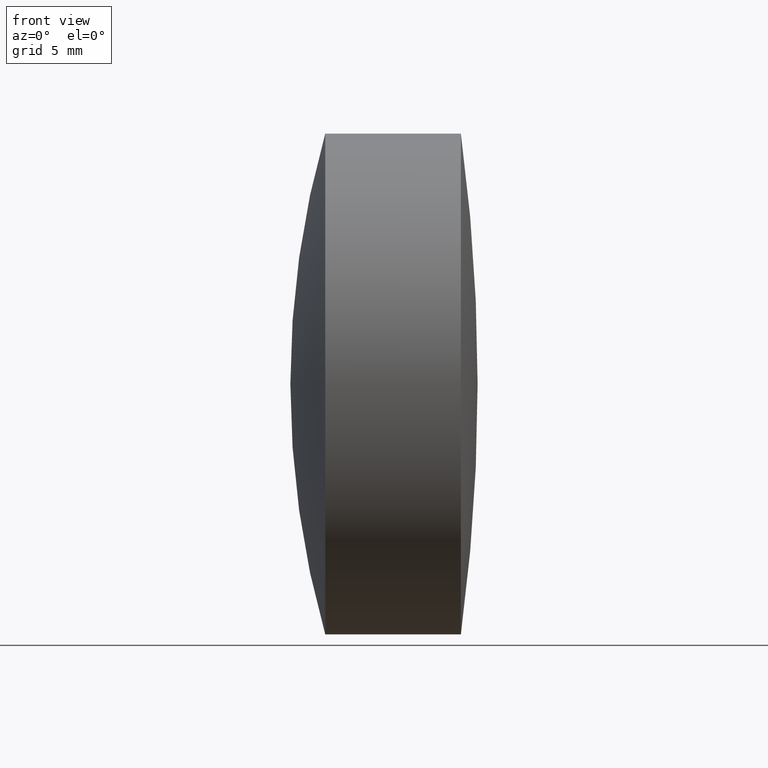
[diagram: clean part render]
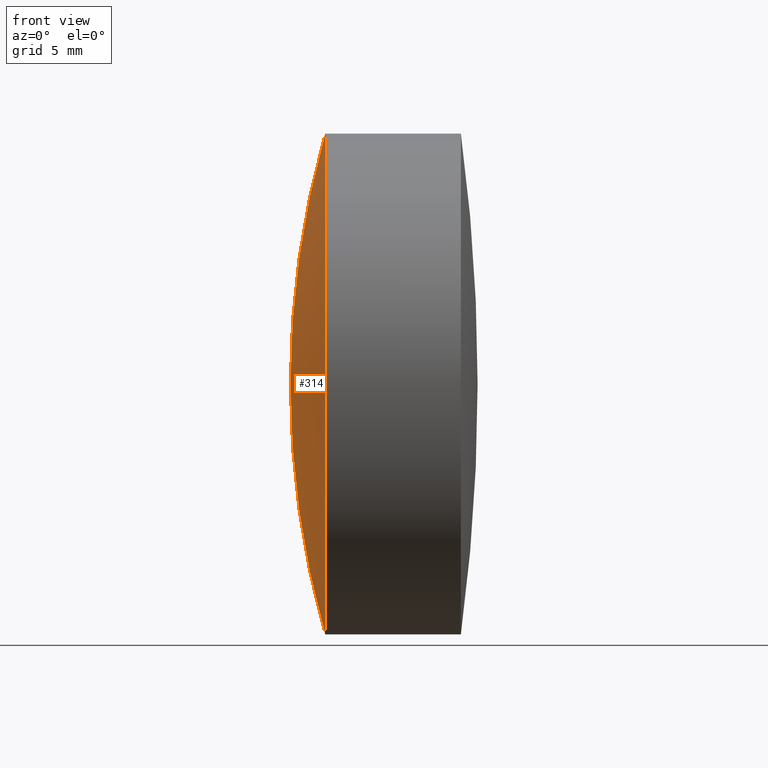
[diagram: same view with one face highlighted and labeled with its STEP entity id]
A machine part, front view. The second image highlights one B-rep face of the part: STEP entity #314.
In plain terms, the highlighted spherical surface has radius 46.5 mm.
Its self-contained STEP definition (entity closure, byte-faithful):
#4 = DIRECTION ( 'NONE',  ( 0.0000000000000000000, 0.0000000000000000000, 1.000000000000000000 ) ) ;
#38 = EDGE_CURVE ( 'NONE', #307, #224, #72, .T. ) ;
#64 = CIRCLE ( 'NONE', #188, 46.50000000000003600 ) ;
#67 = EDGE_CURVE ( 'NONE', #224, #237, #64, .T. ) ;
#72 = CIRCLE ( 'NONE', #229, 12.69999999999999600 ) ;
#79 = EDGE_LOOP ( 'NONE', ( #219, #195, #295 ) ) ;
#88 = DIRECTION ( 'NONE',  ( 0.0000000000000000000, -1.224646799147353200E-016, 1.000000000000000000 ) ) ;
#93 = FACE_OUTER_BOUND ( 'NONE', #79, .T. ) ;
#101 = EDGE_CURVE ( 'NONE', #307, #237, #203, .T. ) ;
#120 = DIRECTION ( 'NONE',  ( -1.000000000000000000, -0.0000000000000000000, -0.0000000000000000000 ) ) ;
#122 = CARTESIAN_POINT ( 'NONE',  ( 239.7637544197977200, 0.0000000000000000000, 12.69999999999999900 ) ) ;
#153 = CARTESIAN_POINT ( 'NONE',  ( 237.9958458084193800, 0.0000000000000000000, -6.563293434434670700E-016 ) ) ;
#154 = AXIS2_PLACEMENT_3D ( 'NONE', #242, #272, #88 ) ;
#159 = CARTESIAN_POINT ( 'NONE',  ( 239.7637544197977200, 1.555301434917138400E-015, -12.70000000000000300 ) ) ;
#185 = CARTESIAN_POINT ( 'NONE',  ( 239.7637544197977200, 0.0000000000000000000, 0.0000000000000000000 ) ) ;
#188 = AXIS2_PLACEMENT_3D ( 'NONE', #216, #225, #343 ) ;
#195 = ORIENTED_EDGE ( 'NONE', *, *, #38, .T. ) ;
#203 = CIRCLE ( 'NONE', #154, 46.50000000000003600 ) ;
#216 = CARTESIAN_POINT ( 'NONE',  ( 284.4958458084194000, 0.0000000000000000000, -3.503633151461065400E-015 ) ) ;
#218 = DIRECTION ( 'NONE',  ( 0.0000000000000000000, 0.0000000000000000000, 1.000000000000000000 ) ) ;
#219 = ORIENTED_EDGE ( 'NONE', *, *, #101, .F. ) ;
#224 = VERTEX_POINT ( 'NONE', #122 ) ;
#225 = DIRECTION ( 'NONE',  ( 0.0000000000000000000, -1.000000000000000000, 0.0000000000000000000 ) ) ;
#229 = AXIS2_PLACEMENT_3D ( 'NONE', #185, #120, #218 ) ;
#237 = VERTEX_POINT ( 'NONE', #153 ) ;
#242 = CARTESIAN_POINT ( 'NONE',  ( 284.4958458084194000, 0.0000000000000000000, -3.503633151461065400E-015 ) ) ;
#272 = DIRECTION ( 'NONE',  ( -0.0000000000000000000, 1.000000000000000000, 1.224646799147353200E-016 ) ) ;
#279 = SPHERICAL_SURFACE ( 'NONE', #337, 46.50000000000003600 ) ;
#295 = ORIENTED_EDGE ( 'NONE', *, *, #67, .T. ) ;
#305 = CARTESIAN_POINT ( 'NONE',  ( 284.4958458084194000, 0.0000000000000000000, -3.503633151461065400E-015 ) ) ;
#307 = VERTEX_POINT ( 'NONE', #159 ) ;
#314 = ADVANCED_FACE ( 'NONE', ( #93 ), #279, .T. ) ;
#337 = AXIS2_PLACEMENT_3D ( 'NONE', #305, #347, #4 ) ;
#343 = DIRECTION ( 'NONE',  ( 0.0000000000000000000, 0.0000000000000000000, -1.000000000000000000 ) ) ;
#347 = DIRECTION ( 'NONE',  ( 0.0000000000000000000, 1.000000000000000000, 0.0000000000000000000 ) ) ;